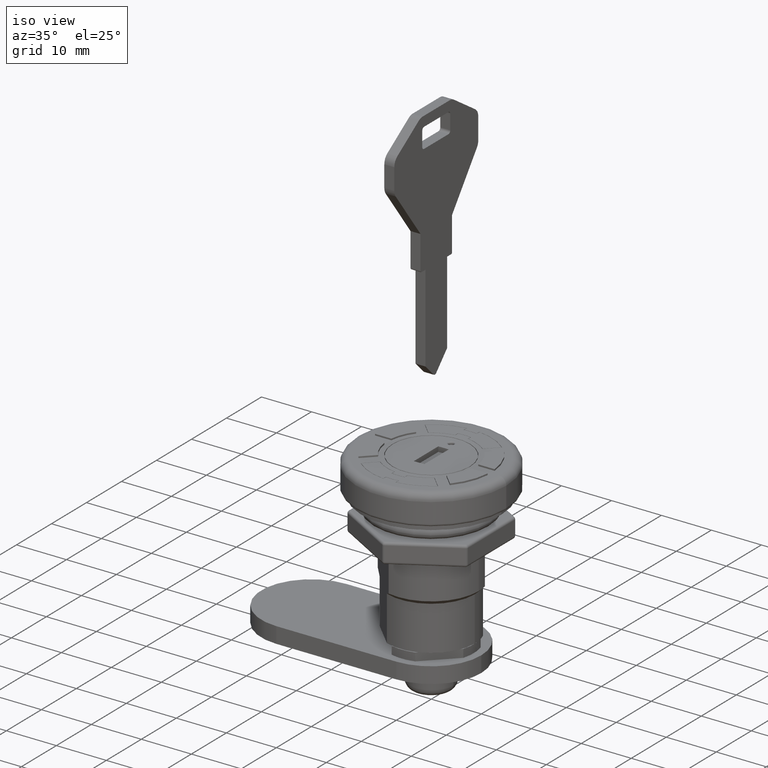
[diagram: clean part render]
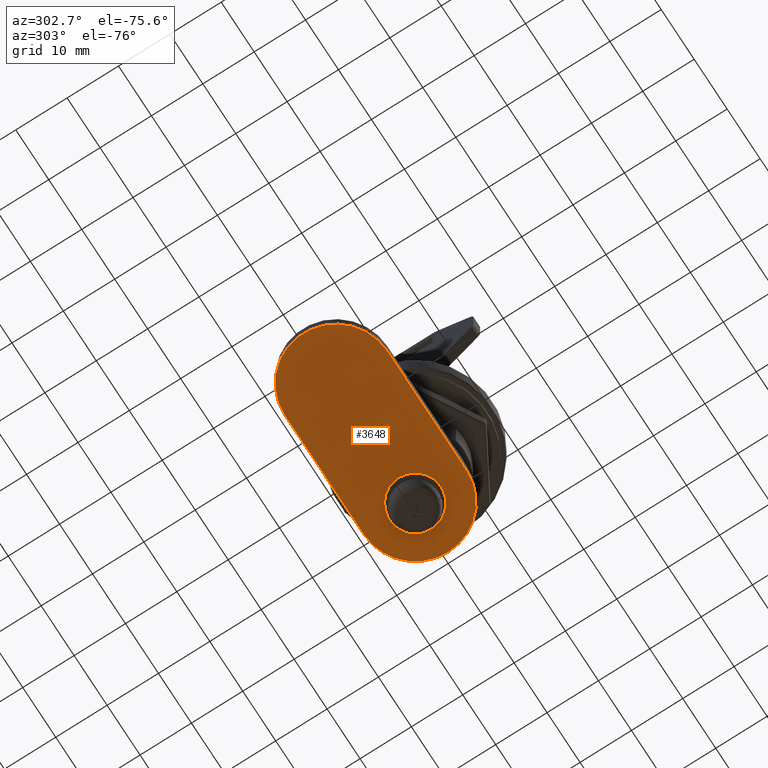
[diagram: tour spotlight — one face highlighted and labeled with its STEP entity id]
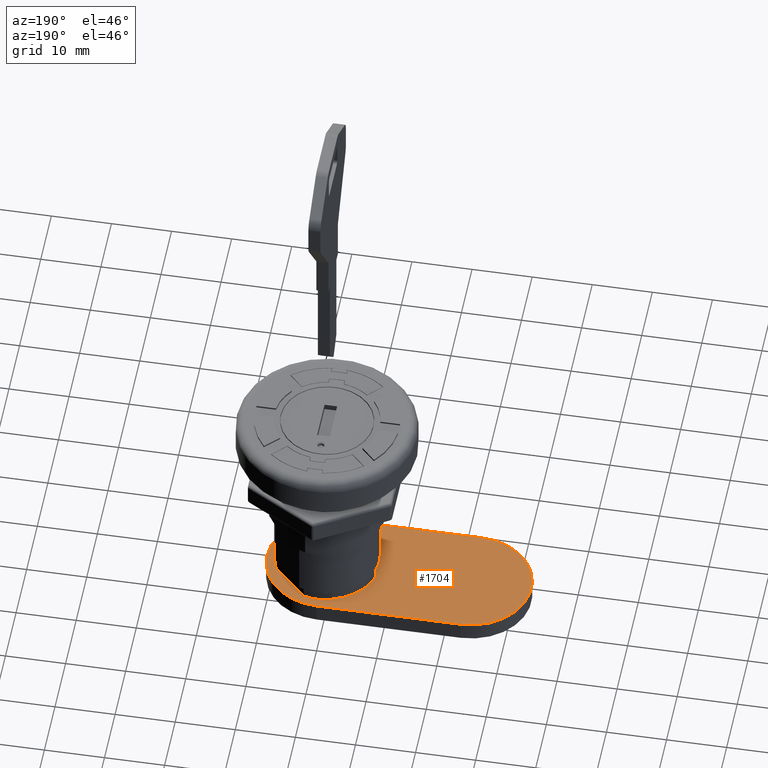
[diagram: tour spotlight — one face highlighted and labeled with its STEP entity id]
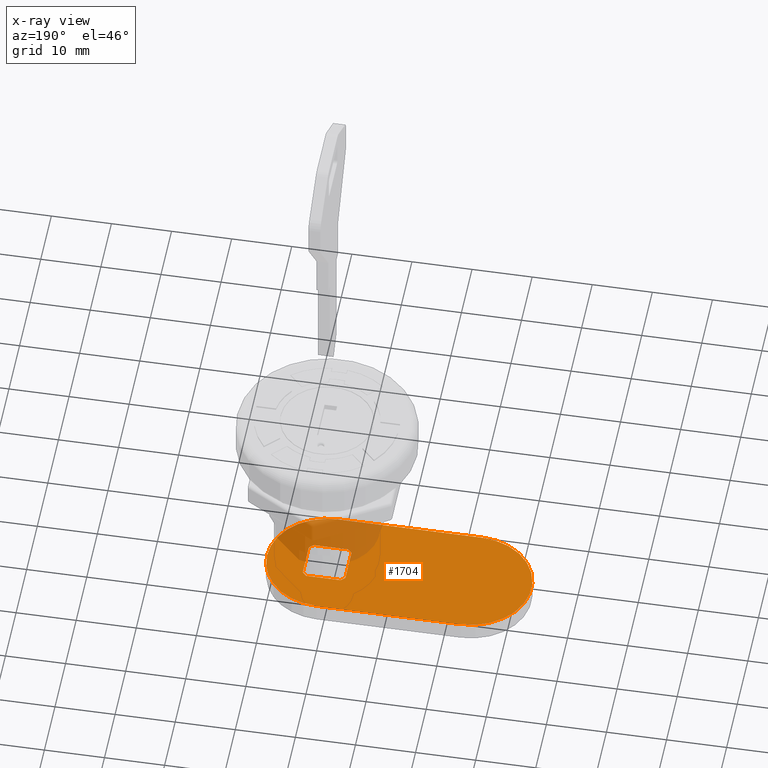
[diagram: x-ray of the same camera — body ghosted, this tour face saturated]
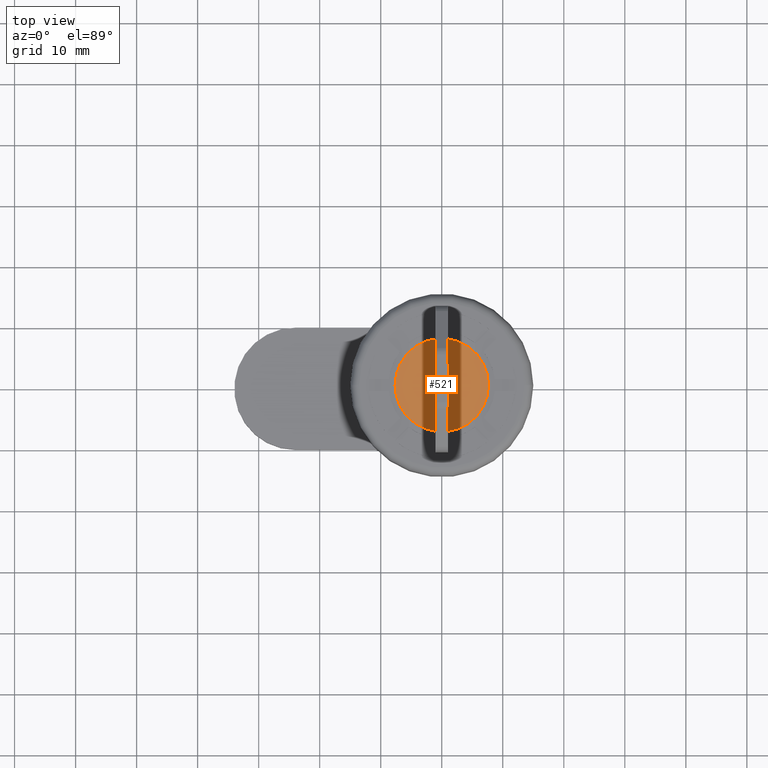
[diagram: tour spotlight — one face highlighted and labeled with its STEP entity id]
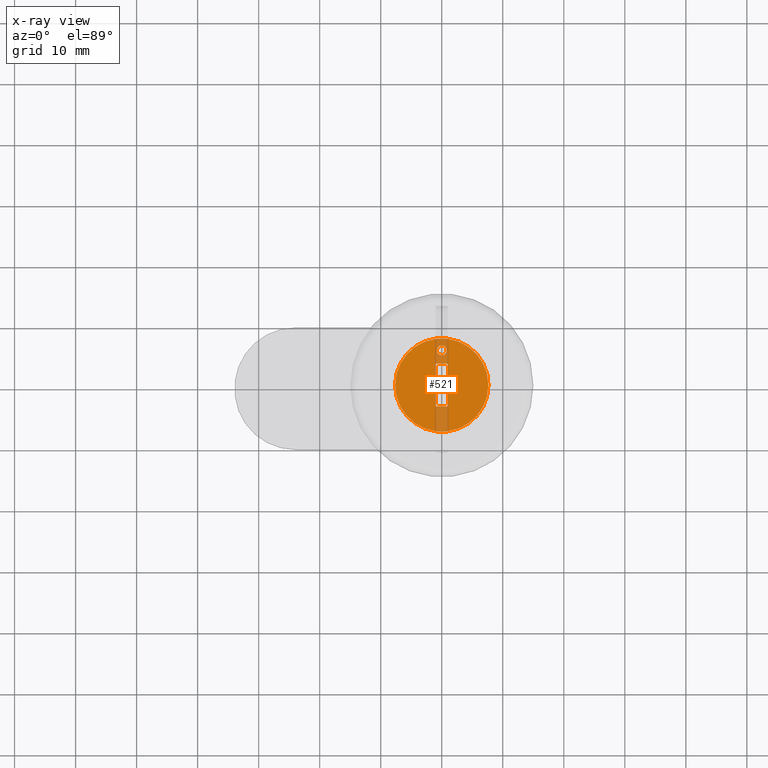
[diagram: x-ray of the same camera — body ghosted, this tour face saturated]
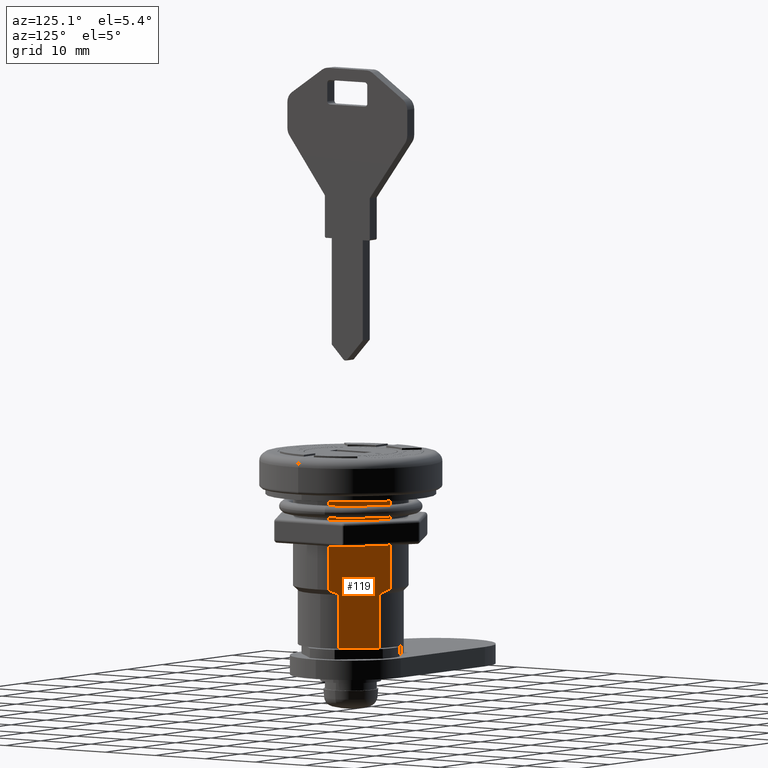
[diagram: tour spotlight — one face highlighted and labeled with its STEP entity id]
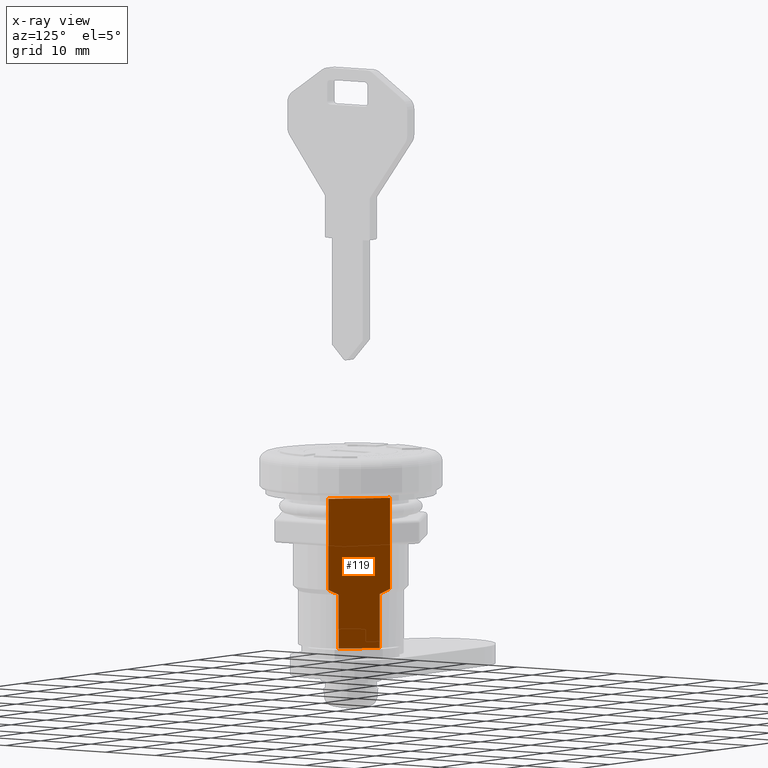
[diagram: x-ray of the same camera — body ghosted, this tour face saturated]
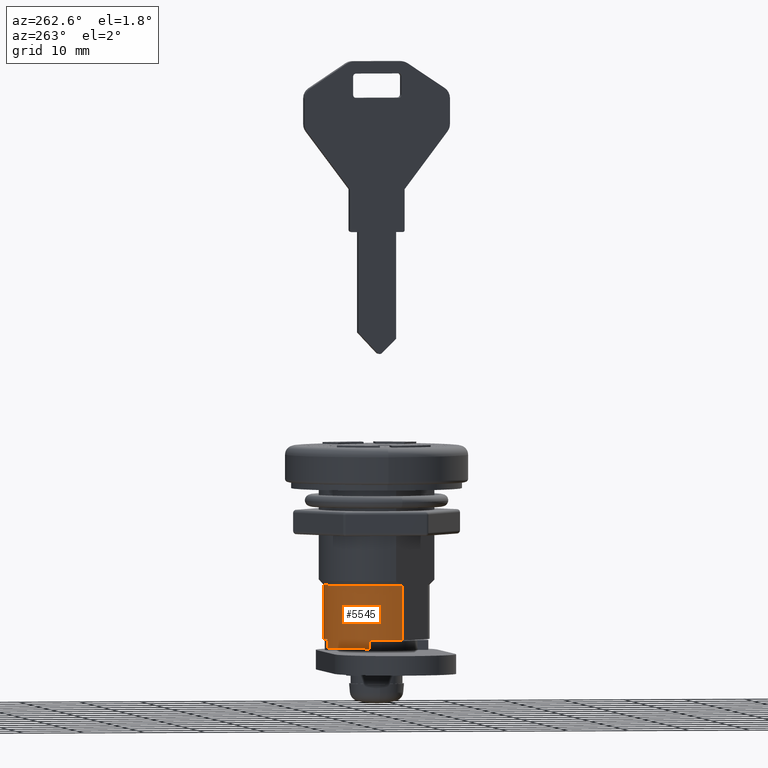
[diagram: tour spotlight — one face highlighted and labeled with its STEP entity id]
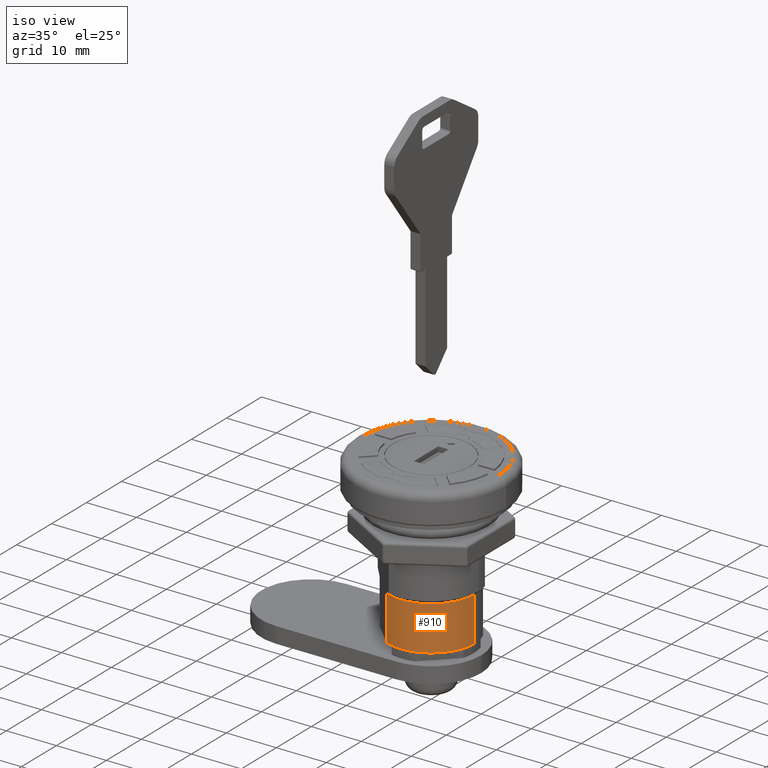
[diagram: tour spotlight — one face highlighted and labeled with its STEP entity id]
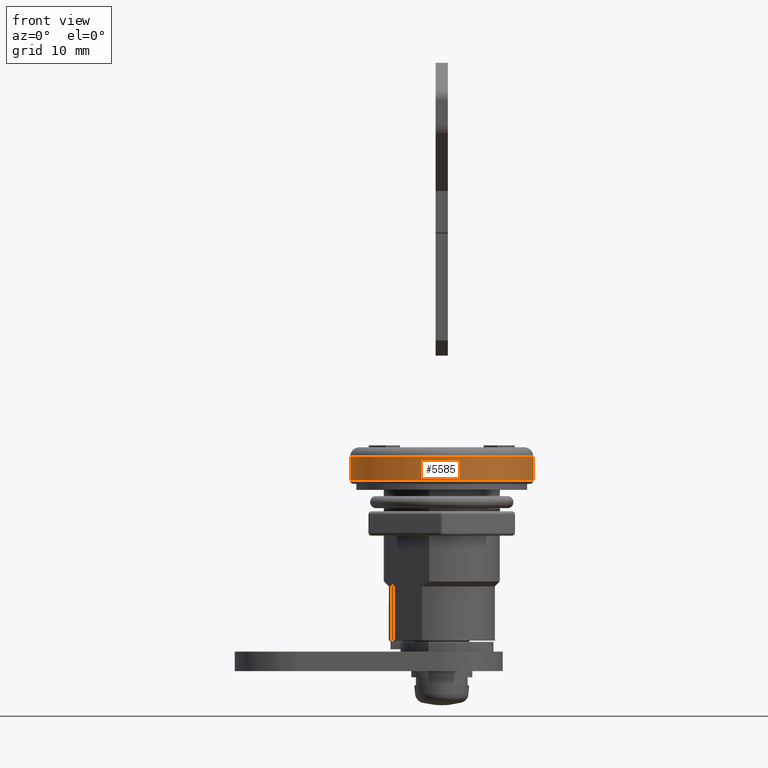
[diagram: tour spotlight — one face highlighted and labeled with its STEP entity id]
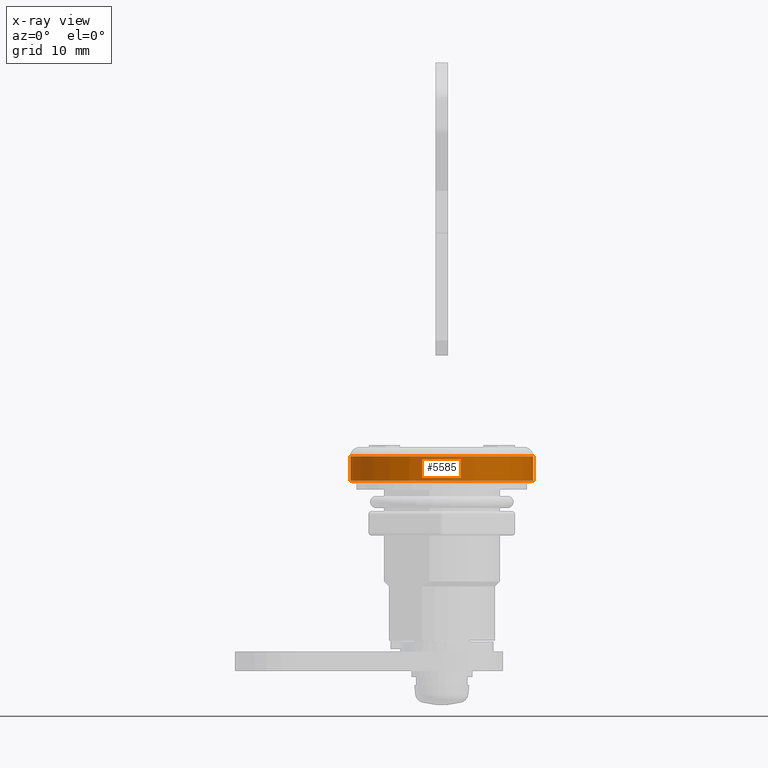
[diagram: x-ray of the same camera — body ghosted, this tour face saturated]
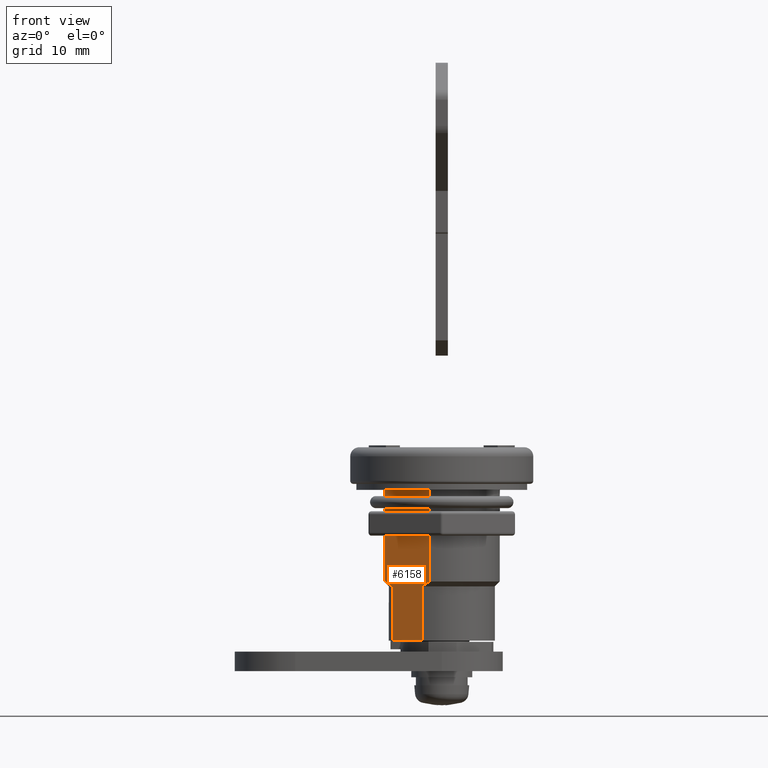
[diagram: tour spotlight — one face highlighted and labeled with its STEP entity id]
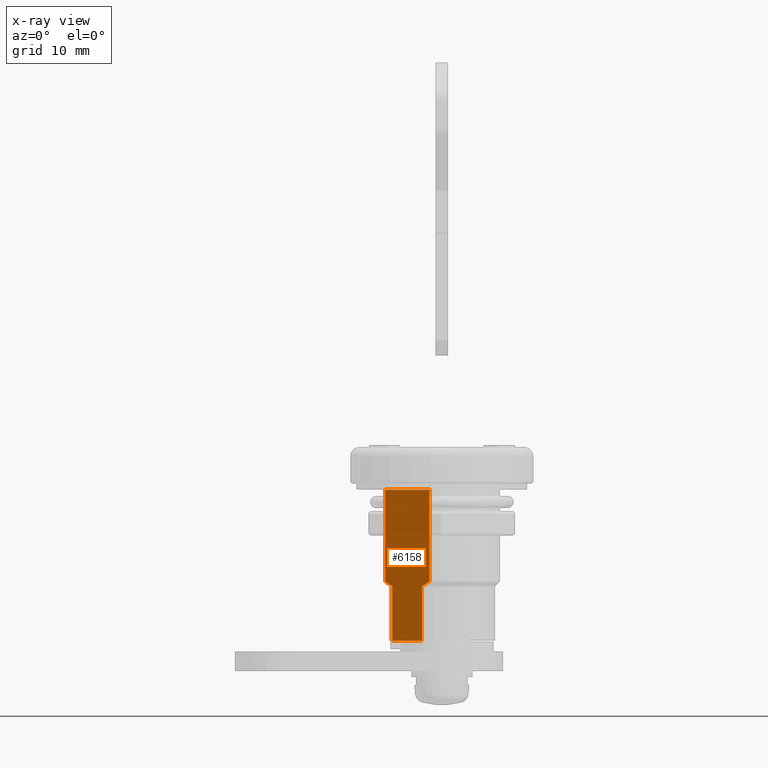
[diagram: x-ray of the same camera — body ghosted, this tour face saturated]
A machine part: a face-by-face anatomy tour. The part has 267 B-rep faces; the first image is the clean iso view, then the 8 largest visible faces are spotlighted one at a time (largest first), each with its STEP entity span.

Face 1 — auxiliary view, entity #3648. In plain terms, the highlighted planar face has unit normal (0, 0, 1).
Definition (entity closure, byte-faithful):
#22 = ORIENTED_EDGE ( 'NONE', *, *, #7203, .F. ) ;
#203 = DIRECTION ( 'NONE',  ( -0.0000000000000000000, -0.0000000000000000000, -1.000000000000000000 ) ) ;
#361 = ORIENTED_EDGE ( 'NONE', *, *, #8113, .F. ) ;
#577 = CARTESIAN_POINT ( 'NONE',  ( -23.99999999999999300, 10.00000000000000900, -3.200000000000000200 ) ) ;
#746 = VERTEX_POINT ( 'NONE', #3159 ) ;
#764 = AXIS2_PLACEMENT_3D ( 'NONE', #7956, #203, #2087 ) ;
#812 = VERTEX_POINT ( 'NONE', #5924 ) ;
#1033 = FACE_BOUND ( 'NONE', #5100, .T. ) ;
#1214 = DIRECTION ( 'NONE',  ( -1.000000000000000000, 5.782411586589358600E-016, -0.0000000000000000000 ) ) ;
#1496 = DIRECTION ( 'NONE',  ( 0.0000000000000000000, 0.0000000000000000000, 1.000000000000000000 ) ) ;
#1557 = CIRCLE ( 'NONE', #6513, 5.000000000000000000 ) ;
#1578 = ORIENTED_EDGE ( 'NONE', *, *, #1960, .F. ) ;
#1673 = CARTESIAN_POINT ( 'NONE',  ( -23.99999999999999300, -2.626334546298655400E-018, -3.200000000000000200 ) ) ;
#1825 = DIRECTION ( 'NONE',  ( 0.0000000000000000000, 0.0000000000000000000, 1.000000000000000000 ) ) ;
#1899 = EDGE_CURVE ( 'NONE', #2423, #746, #1557, .T. ) ;
#1960 = EDGE_CURVE ( 'NONE', #746, #2423, #6079, .T. ) ;
#2087 = DIRECTION ( 'NONE',  ( 1.000000000000000000, 0.0000000000000000000, 0.0000000000000000000 ) ) ;
#2307 = DIRECTION ( 'NONE',  ( 1.000000000000000000, 0.0000000000000000000, 0.0000000000000000000 ) ) ;
#2423 = VERTEX_POINT ( 'NONE', #2998 ) ;
#2602 = CARTESIAN_POINT ( 'NONE',  ( -23.99999999999999300, -9.999999999999989300, -3.200000000000000200 ) ) ;
#2629 = CIRCLE ( 'NONE', #5538, 9.999999999999998200 ) ;
#2882 = LINE ( 'NONE', #2602, #7784 ) ;
#2932 = VECTOR ( 'NONE', #1214, 1000.000000000000000 ) ;
#2998 = CARTESIAN_POINT ( 'NONE',  ( 5.000000000000000000, 0.0000000000000000000, -3.200000000000000200 ) ) ;
#3060 = CARTESIAN_POINT ( 'NONE',  ( -1.224646799147352900E-015, 9.999999999999994700, -3.200000000000000200 ) ) ;
#3079 = ORIENTED_EDGE ( 'NONE', *, *, #1899, .F. ) ;
#3138 = LINE ( 'NONE', #577, #2932 ) ;
#3159 = CARTESIAN_POINT ( 'NONE',  ( -5.000000000000000000, 6.123233995736766300E-016, -3.200000000000000200 ) ) ;
#3311 = VERTEX_POINT ( 'NONE', #6732 ) ;
#3496 = CARTESIAN_POINT ( 'NONE',  ( 0.0000000000000000000, 0.0000000000000000000, -3.200000000000000200 ) ) ;
#3648 = ADVANCED_FACE ( 'NONE', ( #1033, #4450 ), #6597, .F. ) ;
#3736 = CARTESIAN_POINT ( 'NONE',  ( -1.734723475976807100E-015, 0.0000000000000000000, -3.200000000000000200 ) ) ;
#3950 = EDGE_CURVE ( 'NONE', #4868, #8059, #7133, .T. ) ;
#4050 = CARTESIAN_POINT ( 'NONE',  ( -23.99999999999999300, -2.626334546298655400E-018, -3.200000000000000200 ) ) ;
#4065 = DIRECTION ( 'NONE',  ( -0.0000000000000000000, -0.0000000000000000000, -1.000000000000000000 ) ) ;
#4100 = DIRECTION ( 'NONE',  ( 1.000000000000000000, 0.0000000000000000000, 0.0000000000000000000 ) ) ;
#4291 = AXIS2_PLACEMENT_3D ( 'NONE', #5683, #1825, #6322 ) ;
#4394 = DIRECTION ( 'NONE',  ( 1.000000000000000000, 0.0000000000000000000, 0.0000000000000000000 ) ) ;
#4450 = FACE_OUTER_BOUND ( 'NONE', #7763, .T. ) ;
#4527 = AXIS2_PLACEMENT_3D ( 'NONE', #3736, #8193, #4394 ) ;
#4799 = CARTESIAN_POINT ( 'NONE',  ( -23.99999999999999300, -9.999999999999989300, -3.200000000000000200 ) ) ;
#4868 = VERTEX_POINT ( 'NONE', #8091 ) ;
#5091 = CIRCLE ( 'NONE', #4291, 9.999999999999994700 ) ;
#5100 = EDGE_LOOP ( 'NONE', ( #3079, #1578 ) ) ;
#5128 = AXIS2_PLACEMENT_3D ( 'NONE', #4050, #1496, #5986 ) ;
#5538 = AXIS2_PLACEMENT_3D ( 'NONE', #1673, #6157, #2307 ) ;
#5677 = EDGE_CURVE ( 'NONE', #6997, #3311, #2882, .T. ) ;
#5683 = CARTESIAN_POINT ( 'NONE',  ( -1.734723475976807100E-015, 0.0000000000000000000, -3.200000000000000200 ) ) ;
#5924 = CARTESIAN_POINT ( 'NONE',  ( -23.99999999999999300, 10.00000000000000900, -3.200000000000000200 ) ) ;
#5986 = DIRECTION ( 'NONE',  ( 1.000000000000000000, 0.0000000000000000000, -0.0000000000000000000 ) ) ;
#6079 = CIRCLE ( 'NONE', #764, 5.000000000000000000 ) ;
#6157 = DIRECTION ( 'NONE',  ( 0.0000000000000000000, 0.0000000000000000000, 1.000000000000000000 ) ) ;
#6322 = DIRECTION ( 'NONE',  ( 1.000000000000000000, 0.0000000000000000000, 0.0000000000000000000 ) ) ;
#6435 = ORIENTED_EDGE ( 'NONE', *, *, #7939, .F. ) ;
#6513 = AXIS2_PLACEMENT_3D ( 'NONE', #3496, #4065, #4100 ) ;
#6597 = PLANE ( 'NONE',  #5128 ) ;
#6711 = ORIENTED_EDGE ( 'NONE', *, *, #5677, .F. ) ;
#6732 = CARTESIAN_POINT ( 'NONE',  ( -3.571693674697835900E-015, -9.999999999999994700, -3.200000000000000200 ) ) ;
#6997 = VERTEX_POINT ( 'NONE', #4799 ) ;
#7104 = DIRECTION ( 'NONE',  ( 1.000000000000000000, -2.168404344971009400E-016, 0.0000000000000000000 ) ) ;
#7133 = CIRCLE ( 'NONE', #4527, 9.999999999999994700 ) ;
#7203 = EDGE_CURVE ( 'NONE', #3311, #4868, #5091, .T. ) ;
#7240 = ORIENTED_EDGE ( 'NONE', *, *, #3950, .F. ) ;
#7763 = EDGE_LOOP ( 'NONE', ( #6435, #361, #7240, #22, #6711 ) ) ;
#7784 = VECTOR ( 'NONE', #7104, 1000.000000000000000 ) ;
#7939 = EDGE_CURVE ( 'NONE', #812, #6997, #2629, .T. ) ;
#7956 = CARTESIAN_POINT ( 'NONE',  ( 0.0000000000000000000, 0.0000000000000000000, -3.200000000000000200 ) ) ;
#8059 = VERTEX_POINT ( 'NONE', #3060 ) ;
#8091 = CARTESIAN_POINT ( 'NONE',  ( 9.999999999999992900, 0.0000000000000000000, -3.200000000000000200 ) ) ;
#8113 = EDGE_CURVE ( 'NONE', #8059, #812, #3138, .T. ) ;
#8193 = DIRECTION ( 'NONE',  ( 0.0000000000000000000, 0.0000000000000000000, 1.000000000000000000 ) ) ;

Face 2 — auxiliary view, entity #1704. An x-ray twin of the same camera follows (body ghosted, this face saturated) — the face is partly hidden behind the body. In plain terms, the highlighted planar face has unit normal (0, 0, 1).
Definition (entity closure, byte-faithful):
#25 = CARTESIAN_POINT ( 'NONE',  ( -1.224646799147352900E-015, 9.999999999999994700, 0.0000000000000000000 ) ) ;
#154 = CIRCLE ( 'NONE', #6340, 9.999999999999994700 ) ;
#190 = EDGE_CURVE ( 'NONE', #372, #2949, #154, .T. ) ;
#200 = CARTESIAN_POINT ( 'NONE',  ( -23.99999999999999300, -9.999999999999989300, 0.0000000000000000000 ) ) ;
#237 = ORIENTED_EDGE ( 'NONE', *, *, #6218, .T. ) ;
#347 = VECTOR ( 'NONE', #461, 1000.000000000000000 ) ;
#372 = VERTEX_POINT ( 'NONE', #918 ) ;
#388 = CARTESIAN_POINT ( 'NONE',  ( 0.0000000000000000000, 0.0000000000000000000, 0.0000000000000000000 ) ) ;
#401 = CARTESIAN_POINT ( 'NONE',  ( -3.550000000000000300, 2.846049894151541100, 0.0000000000000000000 ) ) ;
#461 = DIRECTION ( 'NONE',  ( 1.000000000000000000, 0.0000000000000000000, 0.0000000000000000000 ) ) ;
#483 = ORIENTED_EDGE ( 'NONE', *, *, #6535, .F. ) ;
#627 = CARTESIAN_POINT ( 'NONE',  ( -3.571693674697835900E-015, -9.999999999999994700, 0.0000000000000000000 ) ) ;
#668 = EDGE_CURVE ( 'NONE', #867, #8173, #5900, .T. ) ;
#686 = EDGE_CURVE ( 'NONE', #3863, #1149, #778, .T. ) ;
#778 = CIRCLE ( 'NONE', #2575, 4.549999999999999800 ) ;
#795 = ORIENTED_EDGE ( 'NONE', *, *, #1356, .T. ) ;
#836 = DIRECTION ( 'NONE',  ( 1.000000000000000000, 0.0000000000000000000, -0.0000000000000000000 ) ) ;
#867 = VERTEX_POINT ( 'NONE', #3268 ) ;
#894 = AXIS2_PLACEMENT_3D ( 'NONE', #388, #4892, #1038 ) ;
#918 = CARTESIAN_POINT ( 'NONE',  ( 9.999999999999992900, 0.0000000000000000000, 0.0000000000000000000 ) ) ;
#934 = CARTESIAN_POINT ( 'NONE',  ( 0.0000000000000000000, 0.0000000000000000000, 0.0000000000000000000 ) ) ;
#985 = ORIENTED_EDGE ( 'NONE', *, *, #2054, .F. ) ;
#1038 = DIRECTION ( 'NONE',  ( 1.000000000000000000, 0.0000000000000000000, 0.0000000000000000000 ) ) ;
#1121 = LINE ( 'NONE', #4962, #2606 ) ;
#1149 = VERTEX_POINT ( 'NONE', #401 ) ;
#1292 = CARTESIAN_POINT ( 'NONE',  ( -23.99999999999999300, -2.626334546298655400E-018, 0.0000000000000000000 ) ) ;
#1305 = DIRECTION ( 'NONE',  ( 1.000000000000000000, 0.0000000000000000000, 0.0000000000000000000 ) ) ;
#1353 = ORIENTED_EDGE ( 'NONE', *, *, #190, .T. ) ;
#1356 = EDGE_CURVE ( 'NONE', #8173, #372, #8062, .T. ) ;
#1412 = DIRECTION ( 'NONE',  ( 0.0000000000000000000, 0.0000000000000000000, 1.000000000000000000 ) ) ;
#1453 = FACE_BOUND ( 'NONE', #1584, .T. ) ;
#1459 = ORIENTED_EDGE ( 'NONE', *, *, #5845, .F. ) ;
#1584 = EDGE_LOOP ( 'NONE', ( #1898, #4409, #985, #6042, #1459, #5158, #4563, #483 ) ) ;
#1621 = DIRECTION ( 'NONE',  ( 0.0000000000000000000, 0.0000000000000000000, 1.000000000000000000 ) ) ;
#1704 = ADVANCED_FACE ( 'NONE', ( #3155, #1453 ), #2053, .T. ) ;
#1834 = VERTEX_POINT ( 'NONE', #2990 ) ;
#1898 = ORIENTED_EDGE ( 'NONE', *, *, #4134, .F. ) ;
#1925 = DIRECTION ( 'NONE',  ( 1.000000000000000000, 0.0000000000000000000, 0.0000000000000000000 ) ) ;
#2053 = PLANE ( 'NONE',  #7519 ) ;
#2054 = EDGE_CURVE ( 'NONE', #2435, #7799, #5680, .T. ) ;
#2409 = CARTESIAN_POINT ( 'NONE',  ( -3.550000000000000300, 3.549999999999999800, 0.0000000000000000000 ) ) ;
#2426 = CARTESIAN_POINT ( 'NONE',  ( -3.549999999999999400, -2.846049894151542000, 0.0000000000000000000 ) ) ;
#2435 = VERTEX_POINT ( 'NONE', #4966 ) ;
#2575 = AXIS2_PLACEMENT_3D ( 'NONE', #934, #5438, #6794 ) ;
#2590 = CARTESIAN_POINT ( 'NONE',  ( 3.549999999999999400, 3.549999999999999800, 0.0000000000000000000 ) ) ;
#2606 = VECTOR ( 'NONE', #5598, 1000.000000000000000 ) ;
#2778 = CARTESIAN_POINT ( 'NONE',  ( -3.550000000000000300, 3.549999999999999800, 0.0000000000000000000 ) ) ;
#2905 = CARTESIAN_POINT ( 'NONE',  ( -3.549999999999999400, -3.549999999999999800, 0.0000000000000000000 ) ) ;
#2948 = CARTESIAN_POINT ( 'NONE',  ( 2.846049894151541500, 3.549999999999999800, 0.0000000000000000000 ) ) ;
#2949 = VERTEX_POINT ( 'NONE', #25 ) ;
#2990 = CARTESIAN_POINT ( 'NONE',  ( -23.99999999999999300, 10.00000000000000900, 0.0000000000000000000 ) ) ;
#3155 = FACE_OUTER_BOUND ( 'NONE', #4517, .T. ) ;
#3268 = CARTESIAN_POINT ( 'NONE',  ( -23.99999999999999300, -9.999999999999989300, 0.0000000000000000000 ) ) ;
#3279 = VECTOR ( 'NONE', #8166, 1000.000000000000000 ) ;
#3388 = VECTOR ( 'NONE', #4738, 1000.000000000000000 ) ;
#3391 = AXIS2_PLACEMENT_3D ( 'NONE', #6827, #6397, #6262 ) ;
#3408 = CARTESIAN_POINT ( 'NONE',  ( -23.99999999999999300, -2.626334546298655400E-018, 0.0000000000000000000 ) ) ;
#3453 = VERTEX_POINT ( 'NONE', #2426 ) ;
#3597 = LINE ( 'NONE', #2778, #3388 ) ;
#3666 = CARTESIAN_POINT ( 'NONE',  ( 0.0000000000000000000, 0.0000000000000000000, 0.0000000000000000000 ) ) ;
#3794 = DIRECTION ( 'NONE',  ( 0.0000000000000000000, 0.0000000000000000000, 1.000000000000000000 ) ) ;
#3863 = VERTEX_POINT ( 'NONE', #4934 ) ;
#3899 = EDGE_CURVE ( 'NONE', #2949, #1834, #1121, .T. ) ;
#3901 = AXIS2_PLACEMENT_3D ( 'NONE', #3666, #8125, #4334 ) ;
#4023 = EDGE_CURVE ( 'NONE', #3453, #2435, #5058, .T. ) ;
#4134 = EDGE_CURVE ( 'NONE', #6768, #4195, #5940, .T. ) ;
#4195 = VERTEX_POINT ( 'NONE', #4578 ) ;
#4210 = VECTOR ( 'NONE', #5993, 1000.000000000000000 ) ;
#4334 = DIRECTION ( 'NONE',  ( 1.000000000000000000, 0.0000000000000000000, 0.0000000000000000000 ) ) ;
#4409 = ORIENTED_EDGE ( 'NONE', *, *, #6470, .F. ) ;
#4415 = CIRCLE ( 'NONE', #6912, 9.999999999999998200 ) ;
#4517 = EDGE_LOOP ( 'NONE', ( #237, #6083, #795, #1353, #6996 ) ) ;
#4520 = CARTESIAN_POINT ( 'NONE',  ( 3.550000000000000300, -2.846049894151541100, 0.0000000000000000000 ) ) ;
#4563 = ORIENTED_EDGE ( 'NONE', *, *, #6103, .F. ) ;
#4578 = CARTESIAN_POINT ( 'NONE',  ( 3.549999999999999400, 2.846049894151542000, 0.0000000000000000000 ) ) ;
#4738 = DIRECTION ( 'NONE',  ( 1.221636250687892500E-016, -1.000000000000000000, 0.0000000000000000000 ) ) ;
#4892 = DIRECTION ( 'NONE',  ( 0.0000000000000000000, 0.0000000000000000000, 1.000000000000000000 ) ) ;
#4934 = CARTESIAN_POINT ( 'NONE',  ( -2.846049894151541500, 3.549999999999999800, 0.0000000000000000000 ) ) ;
#4962 = CARTESIAN_POINT ( 'NONE',  ( -23.99999999999999300, 10.00000000000000900, 0.0000000000000000000 ) ) ;
#4966 = CARTESIAN_POINT ( 'NONE',  ( -2.846049894151541500, -3.549999999999999800, 0.0000000000000000000 ) ) ;
#5012 = CIRCLE ( 'NONE', #3901, 4.549999999999999800 ) ;
#5021 = LINE ( 'NONE', #2409, #3279 ) ;
#5058 = CIRCLE ( 'NONE', #5387, 4.549999999999999800 ) ;
#5158 = ORIENTED_EDGE ( 'NONE', *, *, #686, .F. ) ;
#5376 = VERTEX_POINT ( 'NONE', #2948 ) ;
#5387 = AXIS2_PLACEMENT_3D ( 'NONE', #7606, #3794, #8238 ) ;
#5438 = DIRECTION ( 'NONE',  ( 0.0000000000000000000, 0.0000000000000000000, 1.000000000000000000 ) ) ;
#5598 = DIRECTION ( 'NONE',  ( -1.000000000000000000, 5.782411586589358600E-016, -0.0000000000000000000 ) ) ;
#5680 = LINE ( 'NONE', #2905, #347 ) ;
#5793 = DIRECTION ( 'NONE',  ( 0.0000000000000000000, 0.0000000000000000000, 1.000000000000000000 ) ) ;
#5845 = EDGE_CURVE ( 'NONE', #1149, #3453, #3597, .T. ) ;
#5900 = LINE ( 'NONE', #200, #4210 ) ;
#5940 = LINE ( 'NONE', #2590, #7808 ) ;
#5993 = DIRECTION ( 'NONE',  ( 1.000000000000000000, -2.168404344971009400E-016, 0.0000000000000000000 ) ) ;
#6009 = CIRCLE ( 'NONE', #894, 4.549999999999999800 ) ;
#6042 = ORIENTED_EDGE ( 'NONE', *, *, #4023, .F. ) ;
#6083 = ORIENTED_EDGE ( 'NONE', *, *, #668, .T. ) ;
#6103 = EDGE_CURVE ( 'NONE', #5376, #3863, #5021, .T. ) ;
#6218 = EDGE_CURVE ( 'NONE', #1834, #867, #4415, .T. ) ;
#6262 = DIRECTION ( 'NONE',  ( 1.000000000000000000, 0.0000000000000000000, 0.0000000000000000000 ) ) ;
#6340 = AXIS2_PLACEMENT_3D ( 'NONE', #6815, #1412, #1305 ) ;
#6397 = DIRECTION ( 'NONE',  ( 0.0000000000000000000, 0.0000000000000000000, 1.000000000000000000 ) ) ;
#6470 = EDGE_CURVE ( 'NONE', #7799, #6768, #6009, .T. ) ;
#6535 = EDGE_CURVE ( 'NONE', #4195, #5376, #5012, .T. ) ;
#6768 = VERTEX_POINT ( 'NONE', #4520 ) ;
#6794 = DIRECTION ( 'NONE',  ( 1.000000000000000000, 0.0000000000000000000, 0.0000000000000000000 ) ) ;
#6815 = CARTESIAN_POINT ( 'NONE',  ( -1.734723475976807100E-015, 0.0000000000000000000, 0.0000000000000000000 ) ) ;
#6827 = CARTESIAN_POINT ( 'NONE',  ( -1.734723475976807100E-015, 0.0000000000000000000, 0.0000000000000000000 ) ) ;
#6912 = AXIS2_PLACEMENT_3D ( 'NONE', #1292, #5793, #1925 ) ;
#6996 = ORIENTED_EDGE ( 'NONE', *, *, #3899, .T. ) ;
#7519 = AXIS2_PLACEMENT_3D ( 'NONE', #3408, #1621, #836 ) ;
#7606 = CARTESIAN_POINT ( 'NONE',  ( 0.0000000000000000000, 0.0000000000000000000, 0.0000000000000000000 ) ) ;
#7692 = DIRECTION ( 'NONE',  ( -1.221636250687892500E-016, 1.000000000000000000, -0.0000000000000000000 ) ) ;
#7799 = VERTEX_POINT ( 'NONE', #7904 ) ;
#7808 = VECTOR ( 'NONE', #7692, 1000.000000000000000 ) ;
#7904 = CARTESIAN_POINT ( 'NONE',  ( 2.846049894151541500, -3.549999999999999800, 0.0000000000000000000 ) ) ;
#8062 = CIRCLE ( 'NONE', #3391, 9.999999999999994700 ) ;
#8125 = DIRECTION ( 'NONE',  ( 0.0000000000000000000, 0.0000000000000000000, 1.000000000000000000 ) ) ;
#8166 = DIRECTION ( 'NONE',  ( -1.000000000000000000, -0.0000000000000000000, -0.0000000000000000000 ) ) ;
#8173 = VERTEX_POINT ( 'NONE', #627 ) ;
#8238 = DIRECTION ( 'NONE',  ( 1.000000000000000000, 0.0000000000000000000, 0.0000000000000000000 ) ) ;

Face 3 — top view, entity #521. An x-ray twin of the same camera follows (body ghosted, this face saturated) — the face is partly hidden behind the body. In plain terms, the highlighted planar face has unit normal (0, 0, 1).
Definition (entity closure, byte-faithful):
#171 = DIRECTION ( 'NONE',  ( 1.000000000000000000, 0.0000000000000000000, 0.0000000000000000000 ) ) ;
#215 = DIRECTION ( 'NONE',  ( 1.000000000000000000, 0.0000000000000000000, 0.0000000000000000000 ) ) ;
#307 = DIRECTION ( 'NONE',  ( 1.000000000000000000, 0.0000000000000000000, 0.0000000000000000000 ) ) ;
#445 = LINE ( 'NONE', #2197, #7069 ) ;
#464 = DIRECTION ( 'NONE',  ( 1.000000000000000000, 0.0000000000000000000, -0.0000000000000000000 ) ) ;
#521 = ADVANCED_FACE ( 'NONE', ( #7299, #3699, #1974 ), #3003, .T. ) ;
#683 = VERTEX_POINT ( 'NONE', #6146 ) ;
#713 = ORIENTED_EDGE ( 'NONE', *, *, #3797, .F. ) ;
#1273 = LINE ( 'NONE', #2055, #7868 ) ;
#1974 = FACE_OUTER_BOUND ( 'NONE', #2017, .T. ) ;
#2011 = CARTESIAN_POINT ( 'NONE',  ( 1.050000000000000300, -3.500000000000000000, 0.0000000000000000000 ) ) ;
#2017 = EDGE_LOOP ( 'NONE', ( #3025, #5861 ) ) ;
#2055 = CARTESIAN_POINT ( 'NONE',  ( -1.050000000000000700, 3.500000000000000000, 0.0000000000000000000 ) ) ;
#2179 = CARTESIAN_POINT ( 'NONE',  ( 0.0000000000000000000, 0.0000000000000000000, 0.0000000000000000000 ) ) ;
#2197 = CARTESIAN_POINT ( 'NONE',  ( 1.049999999999999600, 3.500000000000000000, 0.0000000000000000000 ) ) ;
#2265 = CARTESIAN_POINT ( 'NONE',  ( -1.050000000000000700, 3.500000000000000000, 0.0000000000000000000 ) ) ;
#2266 = ORIENTED_EDGE ( 'NONE', *, *, #5522, .F. ) ;
#2312 = EDGE_CURVE ( 'NONE', #3094, #3804, #445, .T. ) ;
#2756 = ORIENTED_EDGE ( 'NONE', *, *, #6376, .F. ) ;
#2796 = AXIS2_PLACEMENT_3D ( 'NONE', #2179, #6673, #2815 ) ;
#2804 = VERTEX_POINT ( 'NONE', #5981 ) ;
#2815 = DIRECTION ( 'NONE',  ( 1.000000000000000000, 0.0000000000000000000, 0.0000000000000000000 ) ) ;
#2890 = CIRCLE ( 'NONE', #2796, 7.650000000000000400 ) ;
#3003 = PLANE ( 'NONE',  #8307 ) ;
#3013 = CARTESIAN_POINT ( 'NONE',  ( -0.8000000000000001600, 5.700000000000000200, 0.0000000000000000000 ) ) ;
#3025 = ORIENTED_EDGE ( 'NONE', *, *, #5784, .T. ) ;
#3061 = CARTESIAN_POINT ( 'NONE',  ( -1.050000000000000000, -3.500000000000000000, 0.0000000000000000000 ) ) ;
#3094 = VERTEX_POINT ( 'NONE', #2011 ) ;
#3405 = VERTEX_POINT ( 'NONE', #3013 ) ;
#3424 = VECTOR ( 'NONE', #6095, 1000.000000000000000 ) ;
#3642 = EDGE_LOOP ( 'NONE', ( #5702, #2266, #713, #2756 ) ) ;
#3699 = FACE_BOUND ( 'NONE', #3642, .T. ) ;
#3728 = DIRECTION ( 'NONE',  ( 1.000000000000000000, 0.0000000000000000000, 0.0000000000000000000 ) ) ;
#3730 = EDGE_CURVE ( 'NONE', #5017, #3405, #7624, .T. ) ;
#3797 = EDGE_CURVE ( 'NONE', #683, #7418, #3840, .T. ) ;
#3804 = VERTEX_POINT ( 'NONE', #4229 ) ;
#3840 = LINE ( 'NONE', #2265, #3424 ) ;
#4018 = DIRECTION ( 'NONE',  ( -1.000000000000000000, -0.0000000000000000000, -0.0000000000000000000 ) ) ;
#4032 = DIRECTION ( 'NONE',  ( 0.0000000000000000000, 0.0000000000000000000, 1.000000000000000000 ) ) ;
#4086 = DIRECTION ( 'NONE',  ( -0.0000000000000000000, -0.0000000000000000000, -1.000000000000000000 ) ) ;
#4164 = DIRECTION ( 'NONE',  ( -0.0000000000000000000, -0.0000000000000000000, -1.000000000000000000 ) ) ;
#4180 = CIRCLE ( 'NONE', #4554, 0.8000000000000001600 ) ;
#4229 = CARTESIAN_POINT ( 'NONE',  ( 1.049999999999999600, 3.500000000000000000, 0.0000000000000000000 ) ) ;
#4326 = DIRECTION ( 'NONE',  ( 0.0000000000000000000, 0.0000000000000000000, 1.000000000000000000 ) ) ;
#4519 = VECTOR ( 'NONE', #3728, 1000.000000000000000 ) ;
#4554 = AXIS2_PLACEMENT_3D ( 'NONE', #7886, #4086, #215 ) ;
#4796 = DIRECTION ( 'NONE',  ( -1.239088197126290800E-016, 1.000000000000000000, -0.0000000000000000000 ) ) ;
#4904 = ORIENTED_EDGE ( 'NONE', *, *, #3730, .T. ) ;
#5017 = VERTEX_POINT ( 'NONE', #7033 ) ;
#5201 = VERTEX_POINT ( 'NONE', #5946 ) ;
#5249 = EDGE_CURVE ( 'NONE', #5201, #2804, #2890, .T. ) ;
#5522 = EDGE_CURVE ( 'NONE', #7418, #3094, #7502, .T. ) ;
#5702 = ORIENTED_EDGE ( 'NONE', *, *, #2312, .F. ) ;
#5784 = EDGE_CURVE ( 'NONE', #2804, #5201, #7403, .T. ) ;
#5861 = ORIENTED_EDGE ( 'NONE', *, *, #5249, .T. ) ;
#5946 = CARTESIAN_POINT ( 'NONE',  ( -7.650000000000000400, 9.368548013477252200E-016, 0.0000000000000000000 ) ) ;
#5981 = CARTESIAN_POINT ( 'NONE',  ( 7.650000000000000400, 0.0000000000000000000, 0.0000000000000000000 ) ) ;
#6095 = DIRECTION ( 'NONE',  ( 1.239088197126290800E-016, -1.000000000000000000, 0.0000000000000000000 ) ) ;
#6146 = CARTESIAN_POINT ( 'NONE',  ( -1.050000000000000700, 3.500000000000000000, 0.0000000000000000000 ) ) ;
#6226 = CARTESIAN_POINT ( 'NONE',  ( 0.0000000000000000000, 0.0000000000000000000, 0.0000000000000000000 ) ) ;
#6376 = EDGE_CURVE ( 'NONE', #3804, #683, #1273, .T. ) ;
#6673 = DIRECTION ( 'NONE',  ( 0.0000000000000000000, 0.0000000000000000000, 1.000000000000000000 ) ) ;
#7033 = CARTESIAN_POINT ( 'NONE',  ( 0.8000000000000001600, 5.700000000000000200, 0.0000000000000000000 ) ) ;
#7069 = VECTOR ( 'NONE', #4796, 1000.000000000000000 ) ;
#7146 = CARTESIAN_POINT ( 'NONE',  ( -1.050000000000000000, -3.500000000000000000, 0.0000000000000000000 ) ) ;
#7210 = AXIS2_PLACEMENT_3D ( 'NONE', #7828, #4032, #171 ) ;
#7299 = FACE_BOUND ( 'NONE', #7438, .T. ) ;
#7403 = CIRCLE ( 'NONE', #7210, 7.650000000000000400 ) ;
#7418 = VERTEX_POINT ( 'NONE', #7146 ) ;
#7438 = EDGE_LOOP ( 'NONE', ( #4904, #8099 ) ) ;
#7502 = LINE ( 'NONE', #3061, #4519 ) ;
#7523 = EDGE_CURVE ( 'NONE', #3405, #5017, #4180, .T. ) ;
#7624 = CIRCLE ( 'NONE', #7657, 0.8000000000000001600 ) ;
#7657 = AXIS2_PLACEMENT_3D ( 'NONE', #7972, #4164, #307 ) ;
#7828 = CARTESIAN_POINT ( 'NONE',  ( 0.0000000000000000000, 0.0000000000000000000, 0.0000000000000000000 ) ) ;
#7868 = VECTOR ( 'NONE', #4018, 1000.000000000000000 ) ;
#7886 = CARTESIAN_POINT ( 'NONE',  ( 0.0000000000000000000, 5.700000000000000200, 0.0000000000000000000 ) ) ;
#7972 = CARTESIAN_POINT ( 'NONE',  ( 0.0000000000000000000, 5.700000000000000200, 0.0000000000000000000 ) ) ;
#8099 = ORIENTED_EDGE ( 'NONE', *, *, #7523, .T. ) ;
#8307 = AXIS2_PLACEMENT_3D ( 'NONE', #6226, #4326, #464 ) ;

Face 4 — auxiliary view, entity #119. An x-ray twin of the same camera follows (body ghosted, this face saturated) — the face is partly hidden behind the body. In plain terms, the highlighted planar face has unit normal (0.7071, 0.7071, 0).
Definition (entity closure, byte-faithful):
#119 = ADVANCED_FACE ( 'NONE', ( #7391 ), #1971, .T. ) ;
#146 = ORIENTED_EDGE ( 'NONE', *, *, #624, .T. ) ;
#160 = DIRECTION ( 'NONE',  ( 0.0000000000000000000, 0.0000000000000000000, -1.000000000000000000 ) ) ;
#175 = EDGE_CURVE ( 'NONE', #490, #5889, #5716, .T. ) ;
#414 = VECTOR ( 'NONE', #5231, 1000.000000000000000 ) ;
#490 = VERTEX_POINT ( 'NONE', #1059 ) ;
#624 = EDGE_CURVE ( 'NONE', #3063, #5889, #1378, .T. ) ;
#817 = CARTESIAN_POINT ( 'NONE',  ( 8.074497730239699000, 3.239210768745059500, -31.69999999999999900 ) ) ;
#1047 = EDGE_CURVE ( 'NONE', #3343, #3951, #5205, .T. ) ;
#1059 = CARTESIAN_POINT ( 'NONE',  ( 8.074497730239699000, 3.239210768745059500, -22.80000000000000100 ) ) ;
#1378 = LINE ( 'NONE', #5685, #4605 ) ;
#1744 = CARTESIAN_POINT ( 'NONE',  ( 2.826962352638150700, 8.486746146346604300, -22.55830025638139300 ) ) ;
#1826 = DIRECTION ( 'NONE',  ( 0.0000000000000000000, 0.0000000000000000000, -1.000000000000000000 ) ) ;
#1971 = PLANE ( 'NONE',  #7499 ) ;
#2007 = EDGE_CURVE ( 'NONE', #3343, #5923, #4181, .T. ) ;
#2084 = VECTOR ( 'NONE', #5997, 1000.000000000000000 ) ;
#2111 = LINE ( 'NONE', #7115, #414 ) ;
#2383 = CARTESIAN_POINT ( 'NONE',  ( 2.034010062945017100, 9.279698436039741000, -21.99999999999999600 ) ) ;
#2393 = CARTESIAN_POINT ( 'NONE',  ( 3.239210768745062200, 8.074497730239697200, -22.80000000000000100 ) ) ;
#2554 = CARTESIAN_POINT ( 'NONE',  ( 8.074497730239699000, 3.239210768745059500, -22.80000000000000100 ) ) ;
#2605 = DIRECTION ( 'NONE',  ( -0.7071067811865474600, 0.7071067811865476800, 0.0000000000000000000 ) ) ;
#2809 = B_SPLINE_CURVE_WITH_KNOTS ( 'NONE', 3,
 ( #8116, #3655, #5609, #1744, #6243, #2393 ),
 .UNSPECIFIED., .F., .F.,
 ( 4, 2, 4 ),
 ( 0.01240132122481856300, 0.01334039632895350100, 0.01427947143308843900 ),
 .UNSPECIFIED. ) ;
#2883 = DIRECTION ( 'NONE',  ( 0.7071067811865474600, -0.7071067811865476800, 0.0000000000000000000 ) ) ;
#3063 = VERTEX_POINT ( 'NONE', #3912 ) ;
#3082 = CARTESIAN_POINT ( 'NONE',  ( 3.239210768745062200, 8.074497730239697200, -22.80000000000000100 ) ) ;
#3105 = CARTESIAN_POINT ( 'NONE',  ( 3.239210768745062200, 8.074497730239697200, -31.69999999999999900 ) ) ;
#3343 = VERTEX_POINT ( 'NONE', #5543 ) ;
#3444 = ORIENTED_EDGE ( 'NONE', *, *, #7477, .T. ) ;
#3477 = VECTOR ( 'NONE', #4396, 1000.000000000000000 ) ;
#3490 = CARTESIAN_POINT ( 'NONE',  ( 9.279698436039741000, 2.034010062945015700, -21.99999999999999600 ) ) ;
#3565 = CARTESIAN_POINT ( 'NONE',  ( 5.656854249492379700, 5.656854249492378800, -31.69999999999999900 ) ) ;
#3655 = CARTESIAN_POINT ( 'NONE',  ( 2.228423133360422100, 9.085285365624333300, -22.14827963409334500 ) ) ;
#3763 = ORIENTED_EDGE ( 'NONE', *, *, #5831, .F. ) ;
#3803 = ORIENTED_EDGE ( 'NONE', *, *, #1047, .T. ) ;
#3838 = CARTESIAN_POINT ( 'NONE',  ( 0.7071067811865497900, 10.60660171779820800, -31.69999999999999900 ) ) ;
#3906 = VERTEX_POINT ( 'NONE', #2383 ) ;
#3912 = CARTESIAN_POINT ( 'NONE',  ( 9.279698436039742800, 2.034010062945012600, -6.999999999999999100 ) ) ;
#3951 = VERTEX_POINT ( 'NONE', #3082 ) ;
#4173 = CARTESIAN_POINT ( 'NONE',  ( 8.074497730239697200, 3.239210768745064000, -31.69999999999999900 ) ) ;
#4181 = LINE ( 'NONE', #3565, #4384 ) ;
#4184 = EDGE_CURVE ( 'NONE', #3906, #8229, #2111, .T. ) ;
#4384 = VECTOR ( 'NONE', #2883, 1000.000000000000000 ) ;
#4396 = DIRECTION ( 'NONE',  ( -0.0000000000000000000, -0.0000000000000000000, 1.000000000000000000 ) ) ;
#4428 = ORIENTED_EDGE ( 'NONE', *, *, #175, .F. ) ;
#4488 = CARTESIAN_POINT ( 'NONE',  ( 8.889138742912079400, 2.424569756072678200, -22.29788145552574000 ) ) ;
#4506 = ORIENTED_EDGE ( 'NONE', *, *, #2007, .F. ) ;
#4576 = LINE ( 'NONE', #817, #6078 ) ;
#4605 = VECTOR ( 'NONE', #1826, 1000.000000000000000 ) ;
#4622 = EDGE_LOOP ( 'NONE', ( #7542, #3763, #146, #4428, #3444, #4506, #3803, #7977 ) ) ;
#5205 = LINE ( 'NONE', #3105, #3477 ) ;
#5231 = DIRECTION ( 'NONE',  ( -0.0000000000000000000, -0.0000000000000000000, 1.000000000000000000 ) ) ;
#5543 = CARTESIAN_POINT ( 'NONE',  ( 3.239210768745063100, 8.074497730239695400, -31.69999999999999900 ) ) ;
#5609 = CARTESIAN_POINT ( 'NONE',  ( 2.425605354175929900, 8.888103144808829000, -22.29025750326133300 ) ) ;
#5685 = CARTESIAN_POINT ( 'NONE',  ( 9.279698436039742800, 2.034010062945015700, -22.80000000000000100 ) ) ;
#5716 = B_SPLINE_CURVE_WITH_KNOTS ( 'NONE', 3,
 ( #2554, #6413, #4488, #7053 ),
 .UNSPECIFIED., .F., .F.,
 ( 4, 4 ),
 ( 0.02128988704719709400, 0.02317777779673420000 ),
 .UNSPECIFIED. ) ;
#5831 = EDGE_CURVE ( 'NONE', #3063, #8229, #7012, .T. ) ;
#5889 = VERTEX_POINT ( 'NONE', #3490 ) ;
#5923 = VERTEX_POINT ( 'NONE', #4173 ) ;
#5997 = DIRECTION ( 'NONE',  ( -0.7071067811865474600, 0.7071067811865476800, -0.0000000000000000000 ) ) ;
#6078 = VECTOR ( 'NONE', #160, 1000.000000000000000 ) ;
#6243 = CARTESIAN_POINT ( 'NONE',  ( 3.031906267019980600, 8.281802231964778800, -22.68478428112065600 ) ) ;
#6413 = CARTESIAN_POINT ( 'NONE',  ( 8.489186465278038400, 2.824522033706717400, -22.56952424901046000 ) ) ;
#6460 = DIRECTION ( 'NONE',  ( 0.7071067811865476800, 0.7071067811865474600, -0.0000000000000000000 ) ) ;
#7012 = LINE ( 'NONE', #7859, #2084 ) ;
#7053 = CARTESIAN_POINT ( 'NONE',  ( 9.279698436039741000, 2.034010062945015700, -21.99999999999999600 ) ) ;
#7115 = CARTESIAN_POINT ( 'NONE',  ( 2.034010062945018800, 9.279698436039742800, -22.80000000000000100 ) ) ;
#7124 = EDGE_CURVE ( 'NONE', #3906, #3951, #2809, .T. ) ;
#7391 = FACE_OUTER_BOUND ( 'NONE', #4622, .T. ) ;
#7477 = EDGE_CURVE ( 'NONE', #490, #5923, #4576, .T. ) ;
#7499 = AXIS2_PLACEMENT_3D ( 'NONE', #3838, #6460, #2605 ) ;
#7542 = ORIENTED_EDGE ( 'NONE', *, *, #4184, .T. ) ;
#7703 = CARTESIAN_POINT ( 'NONE',  ( 2.034010062945015700, 9.279698436039741000, -6.999999999999999100 ) ) ;
#7859 = CARTESIAN_POINT ( 'NONE',  ( 0.7071067811865497900, 10.60660171779820800, -7.000000000000000000 ) ) ;
#7977 = ORIENTED_EDGE ( 'NONE', *, *, #7124, .F. ) ;
#8116 = CARTESIAN_POINT ( 'NONE',  ( 2.034010062945017100, 9.279698436039741000, -21.99999999999999600 ) ) ;
#8229 = VERTEX_POINT ( 'NONE', #7703 ) ;

Face 5 — auxiliary view, entity #5545. In plain terms, the highlighted cylindrical surface (partial cylindrical patch) has radius 8.7 mm, axis along (0, 0, 1).
Definition (entity closure, byte-faithful):
#139 = ORIENTED_EDGE ( 'NONE', *, *, #5194, .F. ) ;
#214 = ORIENTED_EDGE ( 'NONE', *, *, #4351, .F. ) ;
#405 = CARTESIAN_POINT ( 'NONE',  ( -8.074497730239663400, -3.239210768745142100, -31.69999999999999900 ) ) ;
#447 = CARTESIAN_POINT ( 'NONE',  ( -2.251725692391874900, 8.403554688714908800, -31.69999999999999900 ) ) ;
#525 = DIRECTION ( 'NONE',  ( -0.0000000000000000000, -0.0000000000000000000, 1.000000000000000000 ) ) ;
#541 = ORIENTED_EDGE ( 'NONE', *, *, #1047, .F. ) ;
#839 = DIRECTION ( 'NONE',  ( 0.0000000000000000000, 0.0000000000000000000, -1.000000000000000000 ) ) ;
#1047 = EDGE_CURVE ( 'NONE', #3343, #3951, #5205, .T. ) ;
#1120 = ORIENTED_EDGE ( 'NONE', *, *, #5526, .T. ) ;
#1136 = CARTESIAN_POINT ( 'NONE',  ( -2.251725692391875400, 8.403554688714908800, -33.09999999999999400 ) ) ;
#1335 = ORIENTED_EDGE ( 'NONE', *, *, #7906, .F. ) ;
#1410 = CARTESIAN_POINT ( 'NONE',  ( 0.0000000000000000000, 0.0000000000000000000, -33.09999999999999400 ) ) ;
#1516 = AXIS2_PLACEMENT_3D ( 'NONE', #4690, #839, #5339 ) ;
#1605 = CIRCLE ( 'NONE', #1516, 8.699999999999999300 ) ;
#1656 = ORIENTED_EDGE ( 'NONE', *, *, #4836, .T. ) ;
#1811 = VECTOR ( 'NONE', #5006, 1000.000000000000000 ) ;
#1996 = VECTOR ( 'NONE', #4910, 1000.000000000000000 ) ;
#2049 = DIRECTION ( 'NONE',  ( -1.000000000000000000, 0.0000000000000000000, 0.0000000000000000000 ) ) ;
#2444 = DIRECTION ( 'NONE',  ( -0.0000000000000000000, -0.0000000000000000000, 1.000000000000000000 ) ) ;
#2600 = CARTESIAN_POINT ( 'NONE',  ( -8.403554688714908800, 2.251725692391873100, -31.69999999999999900 ) ) ;
#2828 = VERTEX_POINT ( 'NONE', #5371 ) ;
#2892 = EDGE_LOOP ( 'NONE', ( #139, #1656, #8081, #541, #1335, #214, #8260, #1120 ) ) ;
#2918 = DIRECTION ( 'NONE',  ( 0.0000000000000000000, 0.0000000000000000000, -1.000000000000000000 ) ) ;
#3082 = CARTESIAN_POINT ( 'NONE',  ( 3.239210768745062200, 8.074497730239697200, -22.80000000000000100 ) ) ;
#3105 = CARTESIAN_POINT ( 'NONE',  ( 3.239210768745062200, 8.074497730239697200, -31.69999999999999900 ) ) ;
#3329 = VERTEX_POINT ( 'NONE', #5515 ) ;
#3343 = VERTEX_POINT ( 'NONE', #5543 ) ;
#3351 = CARTESIAN_POINT ( 'NONE',  ( 0.0000000000000000000, 0.0000000000000000000, -22.80000000000000100 ) ) ;
#3477 = VECTOR ( 'NONE', #4396, 1000.000000000000000 ) ;
#3523 = LINE ( 'NONE', #1136, #1811 ) ;
#3893 = VERTEX_POINT ( 'NONE', #447 ) ;
#3909 = FACE_OUTER_BOUND ( 'NONE', #2892, .T. ) ;
#3951 = VERTEX_POINT ( 'NONE', #3082 ) ;
#4020 = DIRECTION ( 'NONE',  ( -1.000000000000000000, 0.0000000000000000000, 0.0000000000000000000 ) ) ;
#4122 = VECTOR ( 'NONE', #525, 1000.000000000000000 ) ;
#4247 = AXIS2_PLACEMENT_3D ( 'NONE', #6772, #2918, #7412 ) ;
#4251 = EDGE_CURVE ( 'NONE', #3329, #3951, #7229, .T. ) ;
#4296 = CIRCLE ( 'NONE', #6744, 8.699999999999999300 ) ;
#4325 = LINE ( 'NONE', #8181, #4122 ) ;
#4351 = EDGE_CURVE ( 'NONE', #2828, #3893, #3523, .T. ) ;
#4396 = DIRECTION ( 'NONE',  ( -0.0000000000000000000, -0.0000000000000000000, 1.000000000000000000 ) ) ;
#4690 = CARTESIAN_POINT ( 'NONE',  ( 0.0000000000000000000, 0.0000000000000000000, -31.69999999999999900 ) ) ;
#4809 = AXIS2_PLACEMENT_3D ( 'NONE', #3351, #7815, #4020 ) ;
#4836 = EDGE_CURVE ( 'NONE', #7014, #3329, #6934, .T. ) ;
#4910 = DIRECTION ( 'NONE',  ( -0.0000000000000000000, -0.0000000000000000000, 1.000000000000000000 ) ) ;
#5006 = DIRECTION ( 'NONE',  ( -0.0000000000000000000, -0.0000000000000000000, 1.000000000000000000 ) ) ;
#5194 = EDGE_CURVE ( 'NONE', #7014, #8270, #1605, .T. ) ;
#5205 = LINE ( 'NONE', #3105, #3477 ) ;
#5339 = DIRECTION ( 'NONE',  ( -1.000000000000000000, 0.0000000000000000000, 0.0000000000000000000 ) ) ;
#5371 = CARTESIAN_POINT ( 'NONE',  ( -2.251725692391875400, 8.403554688714908800, -33.09999999999999400 ) ) ;
#5426 = CYLINDRICAL_SURFACE ( 'NONE', #6096, 8.699999999999999300 ) ;
#5515 = CARTESIAN_POINT ( 'NONE',  ( -8.074497730239663400, -3.239210768745142100, -22.80000000000000100 ) ) ;
#5526 = EDGE_CURVE ( 'NONE', #6379, #8270, #4325, .T. ) ;
#5543 = CARTESIAN_POINT ( 'NONE',  ( 3.239210768745063100, 8.074497730239695400, -31.69999999999999900 ) ) ;
#5545 = ADVANCED_FACE ( 'NONE', ( #3909 ), #5426, .T. ) ;
#5912 = DIRECTION ( 'NONE',  ( 0.0000000000000000000, 0.0000000000000000000, -1.000000000000000000 ) ) ;
#6096 = AXIS2_PLACEMENT_3D ( 'NONE', #6948, #2444, #7567 ) ;
#6379 = VERTEX_POINT ( 'NONE', #7812 ) ;
#6744 = AXIS2_PLACEMENT_3D ( 'NONE', #1410, #5912, #2049 ) ;
#6772 = CARTESIAN_POINT ( 'NONE',  ( 0.0000000000000000000, 0.0000000000000000000, -31.69999999999999900 ) ) ;
#6849 = EDGE_CURVE ( 'NONE', #6379, #2828, #4296, .T. ) ;
#6934 = LINE ( 'NONE', #405, #1996 ) ;
#6948 = CARTESIAN_POINT ( 'NONE',  ( 0.0000000000000000000, 0.0000000000000000000, -31.69999999999999900 ) ) ;
#7014 = VERTEX_POINT ( 'NONE', #7350 ) ;
#7229 = CIRCLE ( 'NONE', #4809, 8.700000000000006400 ) ;
#7350 = CARTESIAN_POINT ( 'NONE',  ( -8.074497730239663400, -3.239210768745142100, -31.69999999999999900 ) ) ;
#7412 = DIRECTION ( 'NONE',  ( -1.000000000000000000, 0.0000000000000000000, 0.0000000000000000000 ) ) ;
#7567 = DIRECTION ( 'NONE',  ( 1.000000000000000000, 0.0000000000000000000, 0.0000000000000000000 ) ) ;
#7740 = CIRCLE ( 'NONE', #4247, 8.699999999999999300 ) ;
#7812 = CARTESIAN_POINT ( 'NONE',  ( -8.403554688714908800, 2.251725692391873100, -33.09999999999999400 ) ) ;
#7815 = DIRECTION ( 'NONE',  ( 0.0000000000000000000, 0.0000000000000000000, -1.000000000000000000 ) ) ;
#7906 = EDGE_CURVE ( 'NONE', #3893, #3343, #7740, .T. ) ;
#8081 = ORIENTED_EDGE ( 'NONE', *, *, #4251, .T. ) ;
#8181 = CARTESIAN_POINT ( 'NONE',  ( -8.403554688714908800, 2.251725692391873100, -33.09999999999999400 ) ) ;
#8260 = ORIENTED_EDGE ( 'NONE', *, *, #6849, .F. ) ;
#8270 = VERTEX_POINT ( 'NONE', #2600 ) ;

Face 6 — iso view, entity #910. In plain terms, the highlighted cylindrical surface (partial cylindrical patch) has radius 8.7 mm, axis along (0, 0, 1).
Definition (entity closure, byte-faithful):
#62 = EDGE_CURVE ( 'NONE', #6104, #5109, #2661, .T. ) ;
#70 = CARTESIAN_POINT ( 'NONE',  ( -3.239210768744972500, -8.074497730239732700, -31.69999999999999900 ) ) ;
#377 = CARTESIAN_POINT ( 'NONE',  ( 8.699999999999999300, 0.0000000000000000000, -31.69999999999999900 ) ) ;
#821 = EDGE_CURVE ( 'NONE', #1676, #6104, #1680, .T. ) ;
#910 = ADVANCED_FACE ( 'NONE', ( #7673 ), #2564, .T. ) ;
#986 = DIRECTION ( 'NONE',  ( -0.0000000000000000000, -0.0000000000000000000, 1.000000000000000000 ) ) ;
#987 = VECTOR ( 'NONE', #8233, 1000.000000000000000 ) ;
#1133 = AXIS2_PLACEMENT_3D ( 'NONE', #6531, #2034, #5894 ) ;
#1155 = CARTESIAN_POINT ( 'NONE',  ( -3.239210768744971200, -8.074497730239732700, -22.80000000000000100 ) ) ;
#1318 = DIRECTION ( 'NONE',  ( 1.000000000000000000, 0.0000000000000000000, 0.0000000000000000000 ) ) ;
#1600 = CARTESIAN_POINT ( 'NONE',  ( 8.699999999999999300, 0.0000000000000000000, -31.69999999999999900 ) ) ;
#1676 = VERTEX_POINT ( 'NONE', #3900 ) ;
#1680 = CIRCLE ( 'NONE', #1133, 8.700000000000006400 ) ;
#2034 = DIRECTION ( 'NONE',  ( 0.0000000000000000000, 0.0000000000000000000, -1.000000000000000000 ) ) ;
#2218 = EDGE_CURVE ( 'NONE', #7075, #1676, #5977, .T. ) ;
#2504 = CARTESIAN_POINT ( 'NONE',  ( -3.239210768744971200, -8.074497730239732700, -31.69999999999999900 ) ) ;
#2564 = CYLINDRICAL_SURFACE ( 'NONE', #6303, 8.699999999999999300 ) ;
#2661 = LINE ( 'NONE', #2504, #987 ) ;
#2873 = EDGE_LOOP ( 'NONE', ( #5152, #4090, #2979, #4381 ) ) ;
#2979 = ORIENTED_EDGE ( 'NONE', *, *, #821, .T. ) ;
#3253 = CARTESIAN_POINT ( 'NONE',  ( 0.0000000000000000000, 0.0000000000000000000, -31.69999999999999900 ) ) ;
#3335 = AXIS2_PLACEMENT_3D ( 'NONE', #3253, #7726, #3917 ) ;
#3900 = CARTESIAN_POINT ( 'NONE',  ( 8.700000000000006400, 0.0000000000000000000, -22.80000000000000100 ) ) ;
#3910 = CARTESIAN_POINT ( 'NONE',  ( 0.0000000000000000000, 0.0000000000000000000, -31.69999999999999900 ) ) ;
#3917 = DIRECTION ( 'NONE',  ( -1.000000000000000000, 0.0000000000000000000, 0.0000000000000000000 ) ) ;
#4090 = ORIENTED_EDGE ( 'NONE', *, *, #2218, .T. ) ;
#4275 = VECTOR ( 'NONE', #986, 1000.000000000000000 ) ;
#4381 = ORIENTED_EDGE ( 'NONE', *, *, #62, .T. ) ;
#5109 = VERTEX_POINT ( 'NONE', #70 ) ;
#5152 = ORIENTED_EDGE ( 'NONE', *, *, #5674, .F. ) ;
#5674 = EDGE_CURVE ( 'NONE', #7075, #5109, #7989, .T. ) ;
#5819 = DIRECTION ( 'NONE',  ( -0.0000000000000000000, -0.0000000000000000000, 1.000000000000000000 ) ) ;
#5894 = DIRECTION ( 'NONE',  ( -1.000000000000000000, 0.0000000000000000000, 0.0000000000000000000 ) ) ;
#5977 = LINE ( 'NONE', #1600, #4275 ) ;
#6104 = VERTEX_POINT ( 'NONE', #1155 ) ;
#6303 = AXIS2_PLACEMENT_3D ( 'NONE', #3910, #5819, #1318 ) ;
#6531 = CARTESIAN_POINT ( 'NONE',  ( 0.0000000000000000000, 0.0000000000000000000, -22.80000000000000100 ) ) ;
#7075 = VERTEX_POINT ( 'NONE', #377 ) ;
#7673 = FACE_OUTER_BOUND ( 'NONE', #2873, .T. ) ;
#7726 = DIRECTION ( 'NONE',  ( 0.0000000000000000000, 0.0000000000000000000, -1.000000000000000000 ) ) ;
#7989 = CIRCLE ( 'NONE', #3335, 8.699999999999999300 ) ;
#8233 = DIRECTION ( 'NONE',  ( 0.0000000000000000000, 0.0000000000000000000, -1.000000000000000000 ) ) ;

Face 7 — front view, entity #5585. An x-ray twin of the same camera follows (body ghosted, this face saturated) — the face is partly hidden behind the body. In plain terms, the highlighted cylindrical surface (partial cylindrical patch) has radius 15 mm, axis along (0, 0, 1).
Definition (entity closure, byte-faithful):
#63 = VERTEX_POINT ( 'NONE', #1219 ) ;
#76 = CYLINDRICAL_SURFACE ( 'NONE', #7370, 15.00000000000000000 ) ;
#310 = CARTESIAN_POINT ( 'NONE',  ( 0.0000000000000000000, 0.0000000000000000000, -5.500000000000000000 ) ) ;
#389 = AXIS2_PLACEMENT_3D ( 'NONE', #310, #4170, #7976 ) ;
#568 = CIRCLE ( 'NONE', #389, 15.00000000000000000 ) ;
#653 = LINE ( 'NONE', #5215, #6877 ) ;
#765 = VECTOR ( 'NONE', #4093, 1000.000000000000000 ) ;
#786 = EDGE_LOOP ( 'NONE', ( #3281, #8221, #2671, #5351 ) ) ;
#810 = CIRCLE ( 'NONE', #2717, 15.00000000000000000 ) ;
#1045 = VERTEX_POINT ( 'NONE', #3765 ) ;
#1202 = EDGE_CURVE ( 'NONE', #3533, #63, #5697, .T. ) ;
#1205 = EDGE_CURVE ( 'NONE', #5026, #3533, #568, .T. ) ;
#1219 = CARTESIAN_POINT ( 'NONE',  ( 15.00000000000000000, 0.0000000000000000000, -1.499999999999999600 ) ) ;
#1222 = CARTESIAN_POINT ( 'NONE',  ( 15.00000000000000000, 0.0000000000000000000, -5.500000000000000000 ) ) ;
#1856 = CARTESIAN_POINT ( 'NONE',  ( 0.0000000000000000000, 0.0000000000000000000, -6.000000000000000000 ) ) ;
#2671 = ORIENTED_EDGE ( 'NONE', *, *, #1202, .T. ) ;
#2717 = AXIS2_PLACEMENT_3D ( 'NONE', #3286, #7751, #3940 ) ;
#3117 = DIRECTION ( 'NONE',  ( 1.000000000000000000, 0.0000000000000000000, 0.0000000000000000000 ) ) ;
#3143 = DIRECTION ( 'NONE',  ( 0.0000000000000000000, 0.0000000000000000000, 1.000000000000000000 ) ) ;
#3281 = ORIENTED_EDGE ( 'NONE', *, *, #7379, .F. ) ;
#3286 = CARTESIAN_POINT ( 'NONE',  ( 0.0000000000000000000, 0.0000000000000000000, -1.499999999999999600 ) ) ;
#3502 = FACE_OUTER_BOUND ( 'NONE', #786, .T. ) ;
#3533 = VERTEX_POINT ( 'NONE', #1222 ) ;
#3765 = CARTESIAN_POINT ( 'NONE',  ( -15.00000000000000000, 1.836970198721029600E-015, -1.499999999999999600 ) ) ;
#3844 = CARTESIAN_POINT ( 'NONE',  ( -15.00000000000000000, 1.836970198721029600E-015, -5.500000000000000000 ) ) ;
#3940 = DIRECTION ( 'NONE',  ( 1.000000000000000000, 0.0000000000000000000, 0.0000000000000000000 ) ) ;
#4093 = DIRECTION ( 'NONE',  ( 0.0000000000000000000, 0.0000000000000000000, 1.000000000000000000 ) ) ;
#4170 = DIRECTION ( 'NONE',  ( 0.0000000000000000000, 0.0000000000000000000, 1.000000000000000000 ) ) ;
#4547 = EDGE_CURVE ( 'NONE', #63, #1045, #810, .T. ) ;
#5026 = VERTEX_POINT ( 'NONE', #3844 ) ;
#5215 = CARTESIAN_POINT ( 'NONE',  ( -15.00000000000000000, 1.836970198721029600E-015, -6.000000000000000000 ) ) ;
#5351 = ORIENTED_EDGE ( 'NONE', *, *, #4547, .T. ) ;
#5585 = ADVANCED_FACE ( 'NONE', ( #3502 ), #76, .T. ) ;
#5697 = LINE ( 'NONE', #8001, #765 ) ;
#6877 = VECTOR ( 'NONE', #7744, 1000.000000000000000 ) ;
#7370 = AXIS2_PLACEMENT_3D ( 'NONE', #1856, #3143, #3117 ) ;
#7379 = EDGE_CURVE ( 'NONE', #5026, #1045, #653, .T. ) ;
#7744 = DIRECTION ( 'NONE',  ( 0.0000000000000000000, 0.0000000000000000000, 1.000000000000000000 ) ) ;
#7751 = DIRECTION ( 'NONE',  ( -0.0000000000000000000, -0.0000000000000000000, -1.000000000000000000 ) ) ;
#7976 = DIRECTION ( 'NONE',  ( 1.000000000000000000, 0.0000000000000000000, 0.0000000000000000000 ) ) ;
#8001 = CARTESIAN_POINT ( 'NONE',  ( 15.00000000000000000, 0.0000000000000000000, -6.000000000000000000 ) ) ;
#8221 = ORIENTED_EDGE ( 'NONE', *, *, #1205, .T. ) ;

Face 8 — front view, entity #6158. An x-ray twin of the same camera follows (body ghosted, this face saturated) — the face is partly hidden behind the body. In plain terms, the highlighted planar face has unit normal (0.7071, 0.7071, 0).
Definition (entity closure, byte-faithful):
#16 = ORIENTED_EDGE ( 'NONE', *, *, #2726, .F. ) ;
#62 = EDGE_CURVE ( 'NONE', #6104, #5109, #2661, .T. ) ;
#70 = CARTESIAN_POINT ( 'NONE',  ( -3.239210768744972500, -8.074497730239732700, -31.69999999999999900 ) ) ;
#130 = VERTEX_POINT ( 'NONE', #3259 ) ;
#252 = ORIENTED_EDGE ( 'NONE', *, *, #4836, .F. ) ;
#329 = VERTEX_POINT ( 'NONE', #4098 ) ;
#405 = CARTESIAN_POINT ( 'NONE',  ( -8.074497730239663400, -3.239210768745142100, -31.69999999999999900 ) ) ;
#528 = CARTESIAN_POINT ( 'NONE',  ( -3.239210768744971200, -8.074497730239732700, -22.80000000000000100 ) ) ;
#588 = LINE ( 'NONE', #5965, #7199 ) ;
#595 = DIRECTION ( 'NONE',  ( 0.7071067811865400200, 0.7071067811865550100, 0.0000000000000000000 ) ) ;
#975 = VERTEX_POINT ( 'NONE', #5731 ) ;
#987 = VECTOR ( 'NONE', #8233, 1000.000000000000000 ) ;
#1155 = CARTESIAN_POINT ( 'NONE',  ( -3.239210768744971200, -8.074497730239732700, -22.80000000000000100 ) ) ;
#1236 = VECTOR ( 'NONE', #6506, 1000.000000000000000 ) ;
#1325 = B_SPLINE_CURVE_WITH_KNOTS ( 'NONE', 3,
 ( #528, #5665, #1810, #6308 ),
 .UNSPECIFIED., .F., .F.,
 ( 4, 4 ),
 ( 0.02128988704719709400, 0.02317777779673419600 ),
 .UNSPECIFIED. ) ;
#1391 = CARTESIAN_POINT ( 'NONE',  ( -8.486746146346579400, -2.826962352638236400, -22.55830025638139300 ) ) ;
#1477 = CARTESIAN_POINT ( 'NONE',  ( -9.279698436039719700, -2.034010062945113400, -21.99999999999999600 ) ) ;
#1508 = CARTESIAN_POINT ( 'NONE',  ( -9.085285365624313800, -2.228423133360515800, -22.14827963409334500 ) ) ;
#1533 = CARTESIAN_POINT ( 'NONE',  ( -8.888103144808807700, -2.425605354176021000, -22.29025750326133300 ) ) ;
#1653 = VECTOR ( 'NONE', #4845, 1000.000000000000000 ) ;
#1705 = EDGE_CURVE ( 'NONE', #130, #3329, #3158, .T. ) ;
#1810 = CARTESIAN_POINT ( 'NONE',  ( -2.424569756072583200, -8.889138742912104300, -22.29788145552573700 ) ) ;
#1996 = VECTOR ( 'NONE', #4910, 1000.000000000000000 ) ;
#2104 = DIRECTION ( 'NONE',  ( -0.7071067811865550100, 0.7071067811865400200, 0.0000000000000000000 ) ) ;
#2224 = ORIENTED_EDGE ( 'NONE', *, *, #5786, .F. ) ;
#2492 = CARTESIAN_POINT ( 'NONE',  ( -10.60660171779820100, -0.7071067811866604800, -31.69999999999999900 ) ) ;
#2504 = CARTESIAN_POINT ( 'NONE',  ( -3.239210768744971200, -8.074497730239732700, -31.69999999999999900 ) ) ;
#2661 = LINE ( 'NONE', #2504, #987 ) ;
#2726 = EDGE_CURVE ( 'NONE', #975, #329, #7252, .T. ) ;
#2824 = VECTOR ( 'NONE', #6820, 1000.000000000000000 ) ;
#2980 = ORIENTED_EDGE ( 'NONE', *, *, #3346, .F. ) ;
#3084 = FACE_OUTER_BOUND ( 'NONE', #3698, .T. ) ;
#3158 = B_SPLINE_CURVE_WITH_KNOTS ( 'NONE', 3,
 ( #1477, #1508, #1533, #1391, #3525, #3979 ),
 .UNSPECIFIED., .F., .F.,
 ( 4, 2, 4 ),
 ( 0.01240132122481856100, 0.01334039632895349700, 0.01427947143308843200 ),
 .UNSPECIFIED. ) ;
#3162 = ORIENTED_EDGE ( 'NONE', *, *, #6619, .T. ) ;
#3259 = CARTESIAN_POINT ( 'NONE',  ( -9.279698436039719700, -2.034010062945113400, -21.99999999999999600 ) ) ;
#3301 = CARTESIAN_POINT ( 'NONE',  ( -2.034010062944915800, -9.279698436039762300, -22.80000000000000100 ) ) ;
#3325 = ORIENTED_EDGE ( 'NONE', *, *, #1705, .T. ) ;
#3329 = VERTEX_POINT ( 'NONE', #5515 ) ;
#3346 = EDGE_CURVE ( 'NONE', #130, #7651, #4553, .T. ) ;
#3525 = CARTESIAN_POINT ( 'NONE',  ( -8.281802231964746900, -3.031906267020063200, -22.68478428112065600 ) ) ;
#3698 = EDGE_LOOP ( 'NONE', ( #3325, #252, #2224, #4175, #3162, #16, #7177, #2980 ) ) ;
#3979 = CARTESIAN_POINT ( 'NONE',  ( -8.074497730239663400, -3.239210768745142100, -22.80000000000000100 ) ) ;
#4098 = CARTESIAN_POINT ( 'NONE',  ( -2.034010062944916700, -9.279698436039762300, -21.99999999999999600 ) ) ;
#4175 = ORIENTED_EDGE ( 'NONE', *, *, #62, .F. ) ;
#4228 = CARTESIAN_POINT ( 'NONE',  ( -9.279698436039721400, -2.034010062945113900, -7.000000000000000000 ) ) ;
#4553 = LINE ( 'NONE', #8040, #2824 ) ;
#4836 = EDGE_CURVE ( 'NONE', #7014, #3329, #6934, .T. ) ;
#4845 = DIRECTION ( 'NONE',  ( -0.7071067811865550100, 0.7071067811865400200, 0.0000000000000000000 ) ) ;
#4910 = DIRECTION ( 'NONE',  ( -0.0000000000000000000, -0.0000000000000000000, 1.000000000000000000 ) ) ;
#5072 = PLANE ( 'NONE',  #5628 ) ;
#5101 = DIRECTION ( 'NONE',  ( -0.7071067811865550100, 0.7071067811865400200, 0.0000000000000000000 ) ) ;
#5109 = VERTEX_POINT ( 'NONE', #70 ) ;
#5453 = CARTESIAN_POINT ( 'NONE',  ( -10.60660171779820100, -0.7071067811866604800, -7.000000000000000000 ) ) ;
#5515 = CARTESIAN_POINT ( 'NONE',  ( -8.074497730239663400, -3.239210768745142100, -22.80000000000000100 ) ) ;
#5628 = AXIS2_PLACEMENT_3D ( 'NONE', #2492, #595, #5101 ) ;
#5665 = CARTESIAN_POINT ( 'NONE',  ( -2.824522033706626400, -8.489186465278070400, -22.56952424901045600 ) ) ;
#5731 = CARTESIAN_POINT ( 'NONE',  ( -2.034010062944917600, -9.279698436039762300, -7.000000000000000000 ) ) ;
#5786 = EDGE_CURVE ( 'NONE', #5109, #7014, #588, .T. ) ;
#5965 = CARTESIAN_POINT ( 'NONE',  ( -10.60660171779820100, -0.7071067811866604800, -31.69999999999999900 ) ) ;
#6104 = VERTEX_POINT ( 'NONE', #1155 ) ;
#6158 = ADVANCED_FACE ( 'NONE', ( #3084 ), #5072, .F. ) ;
#6308 = CARTESIAN_POINT ( 'NONE',  ( -2.034010062944916700, -9.279698436039762300, -21.99999999999999600 ) ) ;
#6506 = DIRECTION ( 'NONE',  ( 0.0000000000000000000, 0.0000000000000000000, -1.000000000000000000 ) ) ;
#6619 = EDGE_CURVE ( 'NONE', #6104, #329, #1325, .T. ) ;
#6820 = DIRECTION ( 'NONE',  ( -0.0000000000000000000, -0.0000000000000000000, 1.000000000000000000 ) ) ;
#6934 = LINE ( 'NONE', #405, #1996 ) ;
#6977 = LINE ( 'NONE', #5453, #1653 ) ;
#7014 = VERTEX_POINT ( 'NONE', #7350 ) ;
#7177 = ORIENTED_EDGE ( 'NONE', *, *, #7629, .T. ) ;
#7199 = VECTOR ( 'NONE', #2104, 1000.000000000000000 ) ;
#7252 = LINE ( 'NONE', #3301, #1236 ) ;
#7350 = CARTESIAN_POINT ( 'NONE',  ( -8.074497730239663400, -3.239210768745142100, -31.69999999999999900 ) ) ;
#7629 = EDGE_CURVE ( 'NONE', #975, #7651, #6977, .T. ) ;
#7651 = VERTEX_POINT ( 'NONE', #4228 ) ;
#8040 = CARTESIAN_POINT ( 'NONE',  ( -9.279698436039719700, -2.034010062945112600, -22.80000000000000100 ) ) ;
#8233 = DIRECTION ( 'NONE',  ( 0.0000000000000000000, 0.0000000000000000000, -1.000000000000000000 ) ) ;